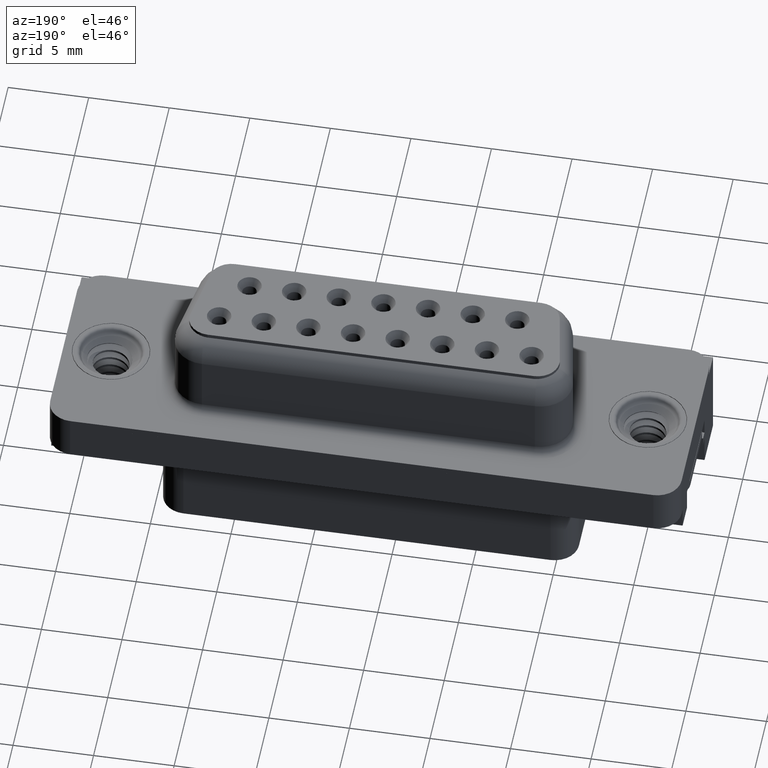
[diagram: clean part render]
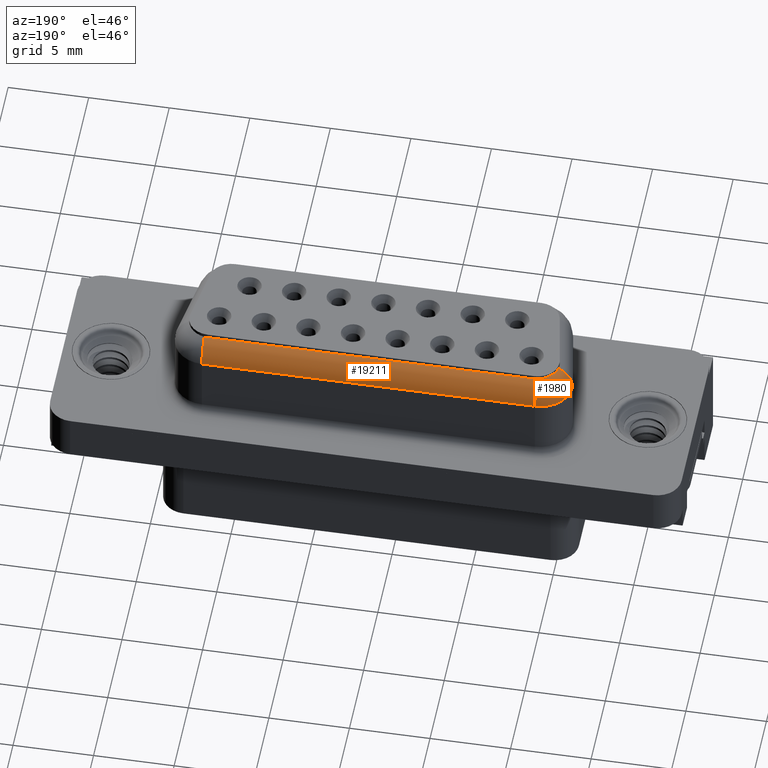
[diagram: same view with one multi-face feature highlighted, each face labeled with its STEP entity id]
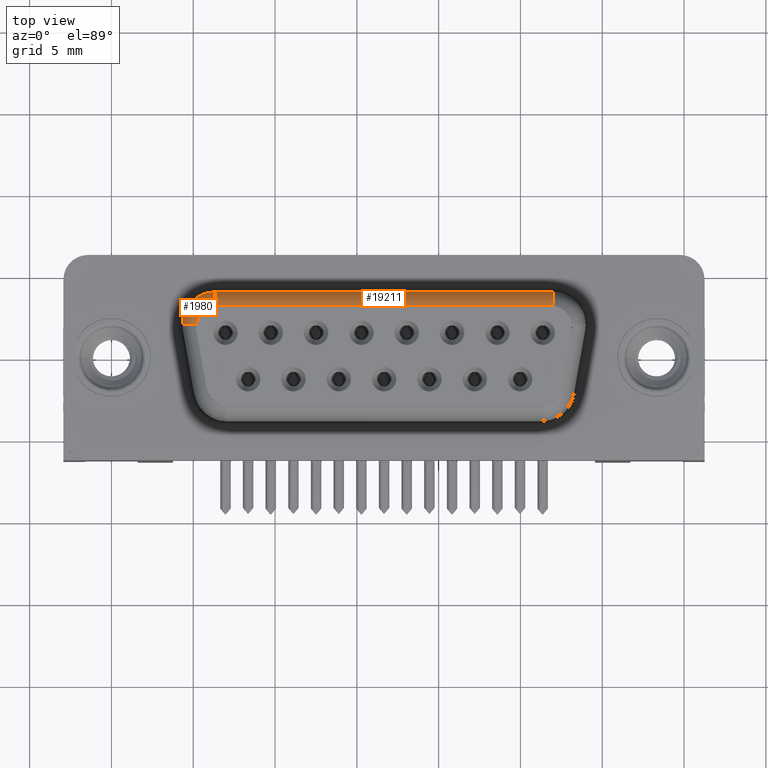
[diagram: same view with one multi-face feature highlighted, each face labeled with its STEP entity id]
A machine part, auxiliary view. The highlighted faces form ONE feature: a constant-radius fillet chain: 2 tangent blend faces with common blend radius 1.75 mm. The faces share edges in the B-rep.
A second angle (top view) of the same feature is appended — it is thin or edge-on in the first view.
Their STEP definitions:
[1] entity #1980 (Torus):
#601 = CARTESIAN_POINT ( 'NONE',  ( 6.079999999999999200, 1.949999999999999700, 4.450000000000000200 ) ) ;
#1132 = CARTESIAN_POINT ( 'NONE',  ( 6.048535661882938900, 3.019257727014186300, 5.981693900727610600 ) ) ;
#1202 = CIRCLE ( 'NONE', #22709, 2.000000000000000900 ) ;
#1729 = CIRCLE ( 'NONE', #18144, 1.749999999999999800 ) ;
#1980 = ADVANCED_FACE ( 'NONE', ( #13751 ), #8469, .T. ) ;
#2391 = CARTESIAN_POINT ( 'NONE',  ( 6.329999999999999200, 3.085102992281866900, 5.959666417806823300 ) ) ;
#3116 = CARTESIAN_POINT ( 'NONE',  ( 6.329999999999999200, 3.085102992281866900, 5.959666417806823300 ) ) ;
#4807 = DIRECTION ( 'NONE',  ( -1.000000000000000000, 0.0000000000000000000, 0.0000000000000000000 ) ) ;
#5158 = EDGE_CURVE ( 'NONE', #22386, #24630, #1729, .T. ) ;
#5378 = CARTESIAN_POINT ( 'NONE',  ( 5.194897007717124800, 1.949999999999227200, 5.959666417807646600 ) ) ;
#5855 = ORIENTED_EDGE ( 'NONE', *, *, #5158, .F. ) ;
#5863 = VERTEX_POINT ( 'NONE', #23477 ) ;
#6534 = CIRCLE ( 'NONE', #15303, 1.749999999999999800 ) ;
#6547 = CARTESIAN_POINT ( 'NONE',  ( 6.330000000000000100, 2.200000000000000600, 4.450000000000000200 ) ) ;
#8020 = EDGE_CURVE ( 'NONE', #22386, #12610, #23995, .T. ) ;
#8157 = DIRECTION ( 'NONE',  ( -0.0000000000000000000, -0.0000000000000000000, -1.000000000000000000 ) ) ;
#8469 = TOROIDAL_SURFACE ( 'NONE', #17771, 0.2500000000000004400, 1.750000000000000000 ) ;
#8585 = DIRECTION ( 'NONE',  ( 0.0000000000000000000, 0.0000000000000000000, -1.000000000000000000 ) ) ;
#9092 = CARTESIAN_POINT ( 'NONE',  ( 5.194897007717124800, 1.949999999999227200, 5.959666417807646600 ) ) ;
#9179 = CARTESIAN_POINT ( 'NONE',  ( 6.330000000000000100, 1.949999999999999700, 4.450000000000000200 ) ) ;
#10315 = DIRECTION ( 'NONE',  ( 0.0000000000000000000, 0.0000000000000000000, -1.000000000000000000 ) ) ;
#10723 = CARTESIAN_POINT ( 'NONE',  ( 4.329999999999999200, 1.949999999999999700, 4.450000000000000200 ) ) ;
#11105 = CARTESIAN_POINT ( 'NONE',  ( 5.372933727309689500, 2.501827834235560200, 5.997470147097672600 ) ) ;
#11404 = EDGE_CURVE ( 'NONE', #5863, #12610, #6534, .T. ) ;
#11896 = ORIENTED_EDGE ( 'NONE', *, *, #11404, .F. ) ;
#12610 = VERTEX_POINT ( 'NONE', #2391 ) ;
#13101 = CARTESIAN_POINT ( 'NONE',  ( 5.794045884720660000, 2.890699183249958000, 5.994296327517854900 ) ) ;
#13306 = EDGE_LOOP ( 'NONE', ( #5855, #16845, #11896, #19791 ) ) ;
#13751 = FACE_OUTER_BOUND ( 'NONE', #13306, .T. ) ;
#15131 = CARTESIAN_POINT ( 'NONE',  ( 6.187487334106949200, 3.063754427158588800, 5.972182877502774500 ) ) ;
#15303 = AXIS2_PLACEMENT_3D ( 'NONE', #6547, #20577, #8585 ) ;
#16845 = ORIENTED_EDGE ( 'NONE', *, *, #8020, .T. ) ;
#17771 = AXIS2_PLACEMENT_3D ( 'NONE', #9179, #23176, #4807 ) ;
#18144 = AXIS2_PLACEMENT_3D ( 'NONE', #601, #25498, #10315 ) ;
#19791 = ORIENTED_EDGE ( 'NONE', *, *, #25402, .F. ) ;
#20152 = CARTESIAN_POINT ( 'NONE',  ( 6.330000000000000100, 1.949999999999999700, 4.450000000000000200 ) ) ;
#20577 = DIRECTION ( 'NONE',  ( 1.000000000000000000, 0.0000000000000000000, -0.0000000000000000000 ) ) ;
#21104 = CARTESIAN_POINT ( 'NONE',  ( 5.237155642283932300, 2.232098147294609100, 5.984442251370471600 ) ) ;
#22146 = DIRECTION ( 'NONE',  ( -1.000000000000000000, 0.0000000000000000000, 0.0000000000000000000 ) ) ;
#22386 = VERTEX_POINT ( 'NONE', #5378 ) ;
#22709 = AXIS2_PLACEMENT_3D ( 'NONE', #20152, #8157, #22146 ) ;
#23176 = DIRECTION ( 'NONE',  ( -0.0000000000000000000, -0.0000000000000000000, -1.000000000000000000 ) ) ;
#23477 = CARTESIAN_POINT ( 'NONE',  ( 6.330000000000000100, 3.950000000000000200, 4.450000000000000200 ) ) ;
#23995 = B_SPLINE_CURVE_WITH_KNOTS ( 'NONE', 3,
 ( #9092, #21104, #11105, #25068, #13101, #1132, #15131, #3116 ),
 .UNSPECIFIED., .F., .F.,
 ( 4, 2, 2, 4 ),
 ( 0.0003491369824329562800, 0.001204615933219645000, 0.001632355408612988300, 0.002060094884006331800 ),
 .UNSPECIFIED. ) ;
#24630 = VERTEX_POINT ( 'NONE', #10723 ) ;
#25068 = CARTESIAN_POINT ( 'NONE',  ( 5.675600949331117000, 2.804935602370260700, 5.997513745258434200 ) ) ;
#25402 = EDGE_CURVE ( 'NONE', #24630, #5863, #1202, .T. ) ;
#25498 = DIRECTION ( 'NONE',  ( 0.0000000000000000000, -1.000000000000000000, 0.0000000000000000000 ) ) ;
[2] entity #19211 (Cylinder):
#165 = LINE ( 'NONE', #16355, #10180 ) ;
#341 = ORIENTED_EDGE ( 'NONE', *, *, #21649, .F. ) ;
#988 = CARTESIAN_POINT ( 'NONE',  ( 6.530000000000002000, 3.099999999999999200, 5.950833101980364000 ) ) ;
#2096 = ORIENTED_EDGE ( 'NONE', *, *, #7826, .T. ) ;
#2188 = CARTESIAN_POINT ( 'NONE',  ( 26.98999999999999500, 3.949999999999996200, 4.450000000000000200 ) ) ;
#2391 = CARTESIAN_POINT ( 'NONE',  ( 6.329999999999999200, 3.085102992281866900, 5.959666417806823300 ) ) ;
#3017 = CARTESIAN_POINT ( 'NONE',  ( 26.98999999999999500, 3.085102992281862000, 5.959666417806824200 ) ) ;
#4117 = LINE ( 'NONE', #15393, #23523 ) ;
#4819 = ORIENTED_EDGE ( 'NONE', *, *, #15582, .T. ) ;
#5302 = DIRECTION ( 'NONE',  ( -1.000000000000000000, 1.679306365902039600E-016, 0.0000000000000000000 ) ) ;
#5509 = EDGE_CURVE ( 'NONE', #17792, #17616, #165, .T. ) ;
#5704 = DIRECTION ( 'NONE',  ( -1.000000000000000000, 0.0000000000000000000, 0.0000000000000000000 ) ) ;
#5765 = EDGE_LOOP ( 'NONE', ( #22582, #4819, #6723, #341, #15748, #2096 ) ) ;
#5851 = CARTESIAN_POINT ( 'NONE',  ( 26.98999999999999500, 3.085102992281862000, 5.959666417806824200 ) ) ;
#5863 = VERTEX_POINT ( 'NONE', #23477 ) ;
#6534 = CIRCLE ( 'NONE', #15303, 1.749999999999999800 ) ;
#6547 = CARTESIAN_POINT ( 'NONE',  ( 6.330000000000000100, 2.200000000000000600, 4.450000000000000200 ) ) ;
#6723 = ORIENTED_EDGE ( 'NONE', *, *, #9071, .T. ) ;
#7826 = EDGE_CURVE ( 'NONE', #12610, #17792, #24947, .T. ) ;
#8585 = DIRECTION ( 'NONE',  ( 0.0000000000000000000, 0.0000000000000000000, -1.000000000000000000 ) ) ;
#9071 = EDGE_CURVE ( 'NONE', #16020, #21279, #20748, .T. ) ;
#9332 = CARTESIAN_POINT ( 'NONE',  ( 26.30232477523700800, 2.199999999999997100, 4.450000000000000200 ) ) ;
#10180 = VECTOR ( 'NONE', #20297, 1000.000000000000000 ) ;
#10950 = CARTESIAN_POINT ( 'NONE',  ( 6.396171561094107900, 3.095015570034541400, 5.953854768208851800 ) ) ;
#11404 = EDGE_CURVE ( 'NONE', #5863, #12610, #6534, .T. ) ;
#11796 = CARTESIAN_POINT ( 'NONE',  ( 26.85716658051239800, 3.099999999999994800, 5.950833101980364900 ) ) ;
#12610 = VERTEX_POINT ( 'NONE', #2391 ) ;
#13036 = AXIS2_PLACEMENT_3D ( 'NONE', #17703, #5704, #19728 ) ;
#15284 = DIRECTION ( 'NONE',  ( 0.0000000000000000000, -1.000000000000000000, 0.0000000000000000000 ) ) ;
#15303 = AXIS2_PLACEMENT_3D ( 'NONE', #6547, #20577, #8585 ) ;
#15393 = CARTESIAN_POINT ( 'NONE',  ( 6.330000000000000100, 3.950000000000000200, 4.450000000000000200 ) ) ;
#15582 = EDGE_CURVE ( 'NONE', #17616, #16020, #20987, .T. ) ;
#15748 = ORIENTED_EDGE ( 'NONE', *, *, #11404, .T. ) ;
#16020 = VERTEX_POINT ( 'NONE', #3017 ) ;
#16355 = CARTESIAN_POINT ( 'NONE',  ( 26.30232477523700800, 3.099999999999994800, 5.950833101980364900 ) ) ;
#16442 = CYLINDRICAL_SURFACE ( 'NONE', #23925, 1.750000000000000000 ) ;
#17239 = DIRECTION ( 'NONE',  ( 1.000000000000000000, -1.679306365902039600E-016, -0.0000000000000000000 ) ) ;
#17305 = CARTESIAN_POINT ( 'NONE',  ( 26.78999999999998800, 3.099999999999994800, 5.950833101980364900 ) ) ;
#17616 = VERTEX_POINT ( 'NONE', #17305 ) ;
#17689 = FACE_OUTER_BOUND ( 'NONE', #5765, .T. ) ;
#17703 = CARTESIAN_POINT ( 'NONE',  ( 26.98999999999999500, 2.199999999999996200, 4.450000000000000200 ) ) ;
#17792 = VERTEX_POINT ( 'NONE', #21911 ) ;
#17848 = CARTESIAN_POINT ( 'NONE',  ( 26.92382843890588300, 3.095015570034537000, 5.953854768208851800 ) ) ;
#18933 = CARTESIAN_POINT ( 'NONE',  ( 6.329999999999999200, 3.085102992281866900, 5.959666417806823300 ) ) ;
#19211 = ADVANCED_FACE ( 'NONE', ( #17689 ), #16442, .T. ) ;
#19728 = DIRECTION ( 'NONE',  ( 0.0000000000000000000, 0.0000000000000000000, 1.000000000000000000 ) ) ;
#19792 = CARTESIAN_POINT ( 'NONE',  ( 26.78999999999998800, 3.099999999999994800, 5.950833101980364900 ) ) ;
#20297 = DIRECTION ( 'NONE',  ( 1.000000000000000000, -1.679306365902039600E-016, -0.0000000000000000000 ) ) ;
#20577 = DIRECTION ( 'NONE',  ( 1.000000000000000000, 0.0000000000000000000, -0.0000000000000000000 ) ) ;
#20748 = CIRCLE ( 'NONE', #13036, 1.749999999999999800 ) ;
#20987 = B_SPLINE_CURVE_WITH_KNOTS ( 'NONE', 3,
 ( #19792, #11796, #17848, #5851 ),
 .UNSPECIFIED., .F., .F.,
 ( 4, 4 ),
 ( 0.0000000000000000000, 0.0002007484702493340400 ),
 .UNSPECIFIED. ) ;
#21279 = VERTEX_POINT ( 'NONE', #2188 ) ;
#21649 = EDGE_CURVE ( 'NONE', #5863, #21279, #4117, .T. ) ;
#21911 = CARTESIAN_POINT ( 'NONE',  ( 6.530000000000002000, 3.099999999999999200, 5.950833101980364000 ) ) ;
#22582 = ORIENTED_EDGE ( 'NONE', *, *, #5509, .T. ) ;
#22947 = CARTESIAN_POINT ( 'NONE',  ( 6.462833419487593800, 3.099999999999999200, 5.950833101980364000 ) ) ;
#23477 = CARTESIAN_POINT ( 'NONE',  ( 6.330000000000000100, 3.950000000000000200, 4.450000000000000200 ) ) ;
#23523 = VECTOR ( 'NONE', #17239, 1000.000000000000000 ) ;
#23925 = AXIS2_PLACEMENT_3D ( 'NONE', #9332, #5302, #15284 ) ;
#24947 = B_SPLINE_CURVE_WITH_KNOTS ( 'NONE', 3,
 ( #18933, #10950, #22947, #988 ),
 .UNSPECIFIED., .F., .F.,
 ( 4, 4 ),
 ( 0.0000000000000000000, 0.0002007484702493279400 ),
 .UNSPECIFIED. ) ;